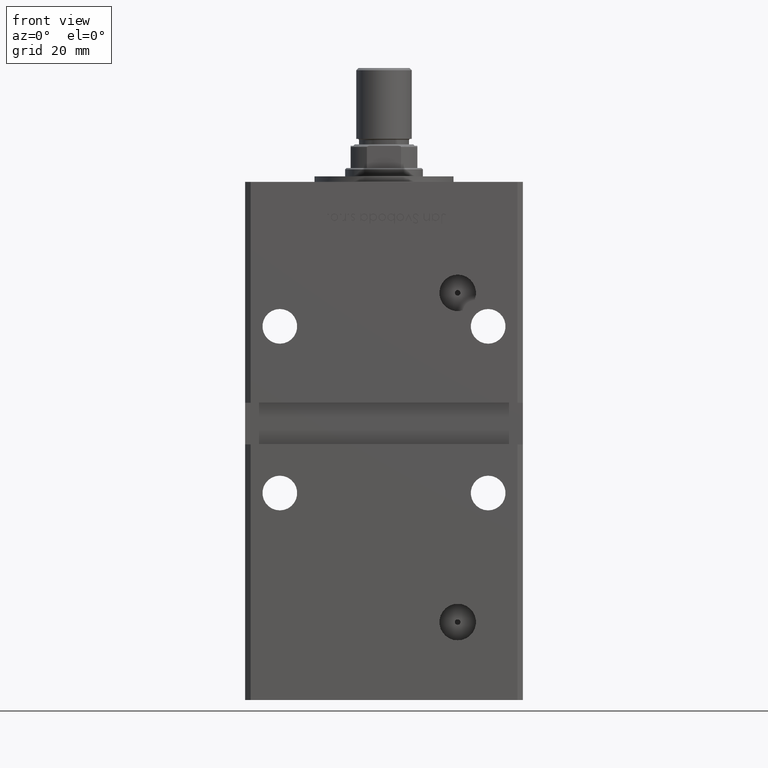
[diagram: clean part render]
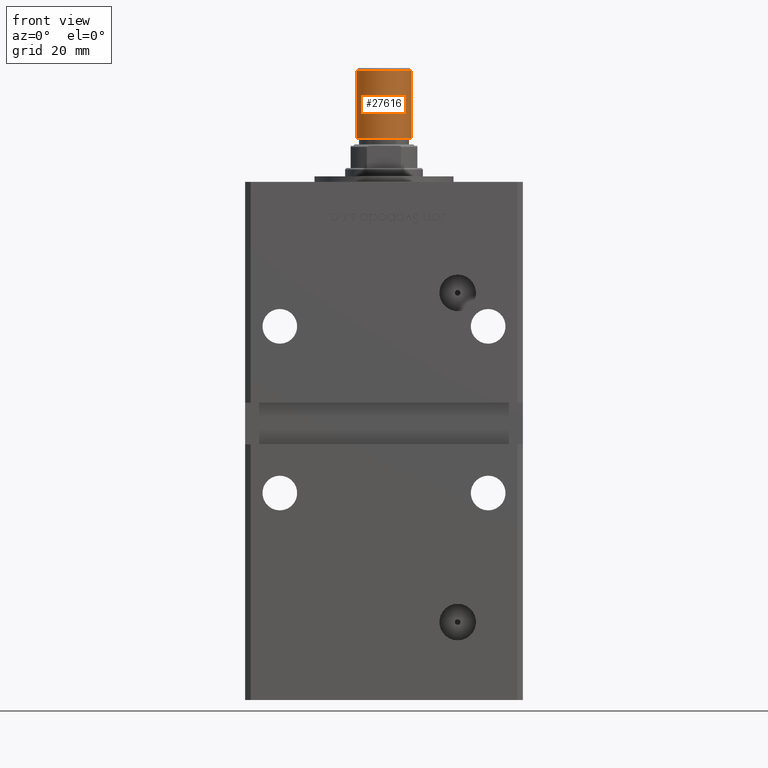
[diagram: same view with one face highlighted and labeled with its STEP entity id]
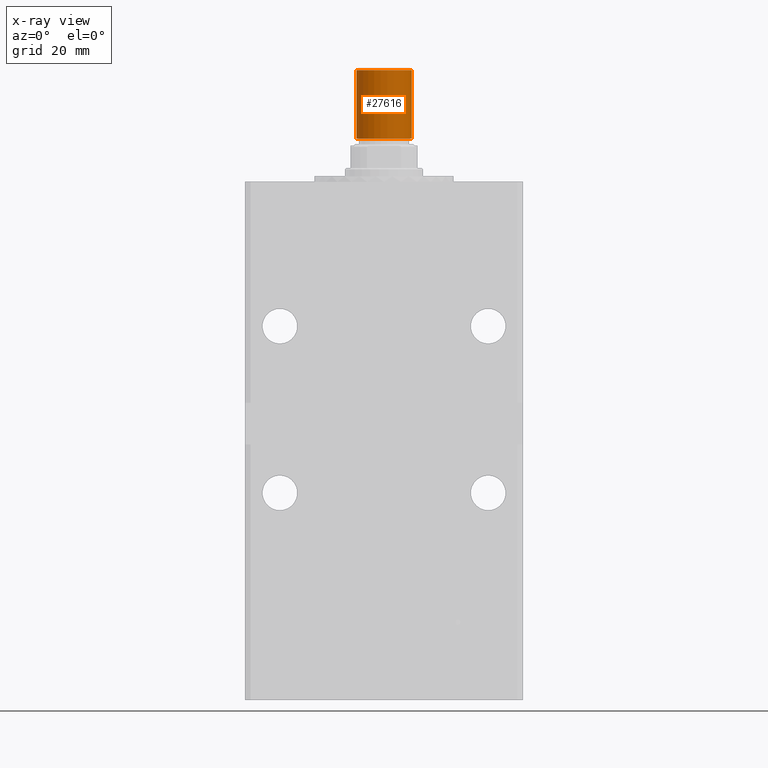
[diagram: x-ray of the same camera — body ghosted, the highlighted face saturated]
A machine part, front view. The second image highlights one B-rep face of the part: STEP entity #27616.
The next image is the same camera in x-ray: the body ghosted, the highlighted face saturated — about 0% of this face is hidden behind the body in this view.
In plain terms, the highlighted cylindrical surface (edge-blend (fillet) strip) has radius 10 mm, axis along (0, -0, 1).
Its self-contained STEP definition (entity closure, byte-faithful):
#2696 = DIRECTION ( 'NONE',  ( -1.000000000000000000, 0.000000000000000000, 0.000000000000000000 ) ) ;
#4706 = VERTEX_POINT ( 'NONE', #14616 ) ;
#5167 = VECTOR ( 'NONE', #36562, 1000.000000000000000 ) ;
#6457 = EDGE_CURVE ( 'NONE', #19570, #4706, #20014, .T. ) ;
#10093 = DIRECTION ( 'NONE',  ( 0.000000000000000000, 0.000000000000000000, 1.000000000000000000 ) ) ;
#11345 = DIRECTION ( 'NONE',  ( -0.000000000000000000, -0.000000000000000000, -1.000000000000000000 ) ) ;
#13337 = AXIS2_PLACEMENT_3D ( 'NONE', #43906, #11345, #2696 ) ;
#13991 = ORIENTED_EDGE ( 'NONE', *, *, #39451, .F. ) ;
#14616 = CARTESIAN_POINT ( 'NONE',  ( 10.00000000000000000, 1.224646799147353256E-15, 0.7999999999999986011 ) ) ;
#15044 = DIRECTION ( 'NONE',  ( 1.000000000000000000, 0.000000000000000000, 0.000000000000000000 ) ) ;
#15944 = VERTEX_POINT ( 'NONE', #19717 ) ;
#18486 = ORIENTED_EDGE ( 'NONE', *, *, #32209, .T. ) ;
#18851 = CARTESIAN_POINT ( 'NONE',  ( 0.000000000000000000, 0.000000000000000000, 0.7999999999999986011 ) ) ;
#19570 = VERTEX_POINT ( 'NONE', #52765 ) ;
#19717 = CARTESIAN_POINT ( 'NONE',  ( -10.00000000000000000, 0.000000000000000000, 25.50000000000000000 ) ) ;
#20014 = LINE ( 'NONE', #48499, #5167 ) ;
#24070 = ORIENTED_EDGE ( 'NONE', *, *, #34724, .T. ) ;
#24085 = CARTESIAN_POINT ( 'NONE',  ( -10.00000000000000000, 0.000000000000000000, 0.7999999999999986011 ) ) ;
#26931 = EDGE_LOOP ( 'NONE', ( #49431, #13991, #18486, #24070 ) ) ;
#27616 = ADVANCED_FACE ( 'NONE', ( #39565 ), #31168, .T. ) ;
#29920 = DIRECTION ( 'NONE',  ( 1.000000000000000000, 0.000000000000000000, 0.000000000000000000 ) ) ;
#31168 = CYLINDRICAL_SURFACE ( 'NONE', #13337, 10.00000000000000000 ) ;
#32209 = EDGE_CURVE ( 'NONE', #15944, #36387, #38795, .T. ) ;
#33353 = CIRCLE ( 'NONE', #38546, 10.00000000000000000 ) ;
#33380 = DIRECTION ( 'NONE',  ( -0.000000000000000000, -0.000000000000000000, -1.000000000000000000 ) ) ;
#34724 = EDGE_CURVE ( 'NONE', #36387, #4706, #33353, .T. ) ;
#35990 = VECTOR ( 'NONE', #33380, 1000.000000000000000 ) ;
#36387 = VERTEX_POINT ( 'NONE', #24085 ) ;
#36562 = DIRECTION ( 'NONE',  ( -0.000000000000000000, -0.000000000000000000, -1.000000000000000000 ) ) ;
#37720 = CARTESIAN_POINT ( 'NONE',  ( -10.00000000000000000, 0.000000000000000000, 25.50000000000000000 ) ) ;
#38546 = AXIS2_PLACEMENT_3D ( 'NONE', #18851, #48678, #15044 ) ;
#38795 = LINE ( 'NONE', #37720, #35990 ) ;
#39451 = EDGE_CURVE ( 'NONE', #15944, #19570, #40445, .T. ) ;
#39565 = FACE_OUTER_BOUND ( 'NONE', #26931, .T. ) ;
#40445 = CIRCLE ( 'NONE', #47376, 10.00000000000000000 ) ;
#42922 = CARTESIAN_POINT ( 'NONE',  ( 0.000000000000000000, 0.000000000000000000, 25.50000000000000000 ) ) ;
#43906 = CARTESIAN_POINT ( 'NONE',  ( 0.000000000000000000, 0.000000000000000000, 25.50000000000000000 ) ) ;
#47376 = AXIS2_PLACEMENT_3D ( 'NONE', #42922, #10093, #29920 ) ;
#48499 = CARTESIAN_POINT ( 'NONE',  ( 10.00000000000000000, 1.224646799147353256E-15, 25.50000000000000000 ) ) ;
#48678 = DIRECTION ( 'NONE',  ( -0.000000000000000000, -0.000000000000000000, 1.000000000000000000 ) ) ;
#49431 = ORIENTED_EDGE ( 'NONE', *, *, #6457, .F. ) ;
#52765 = CARTESIAN_POINT ( 'NONE',  ( 10.00000000000000000, 1.224646799147353256E-15, 25.50000000000000000 ) ) ;